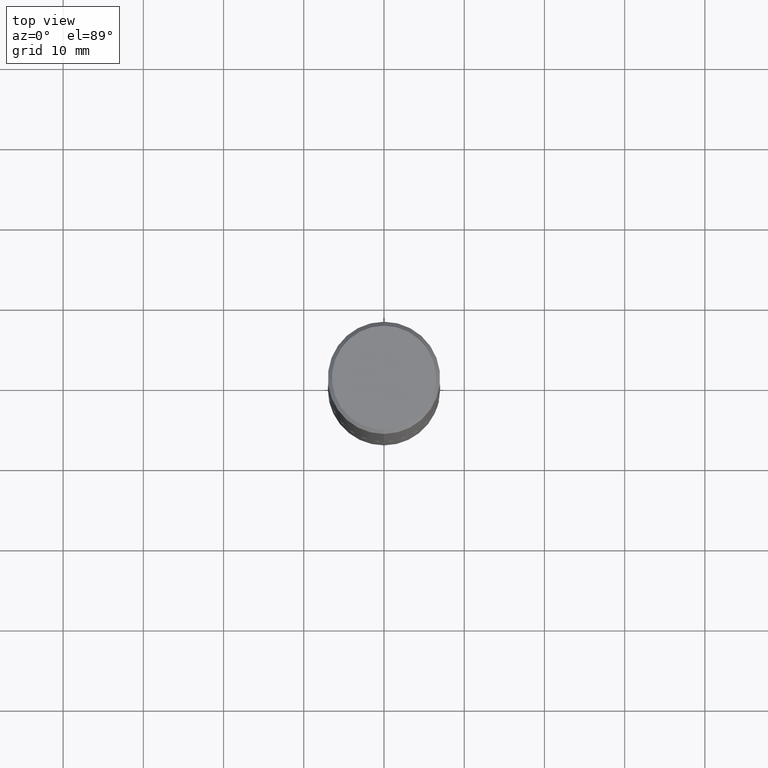
[diagram: clean part render]
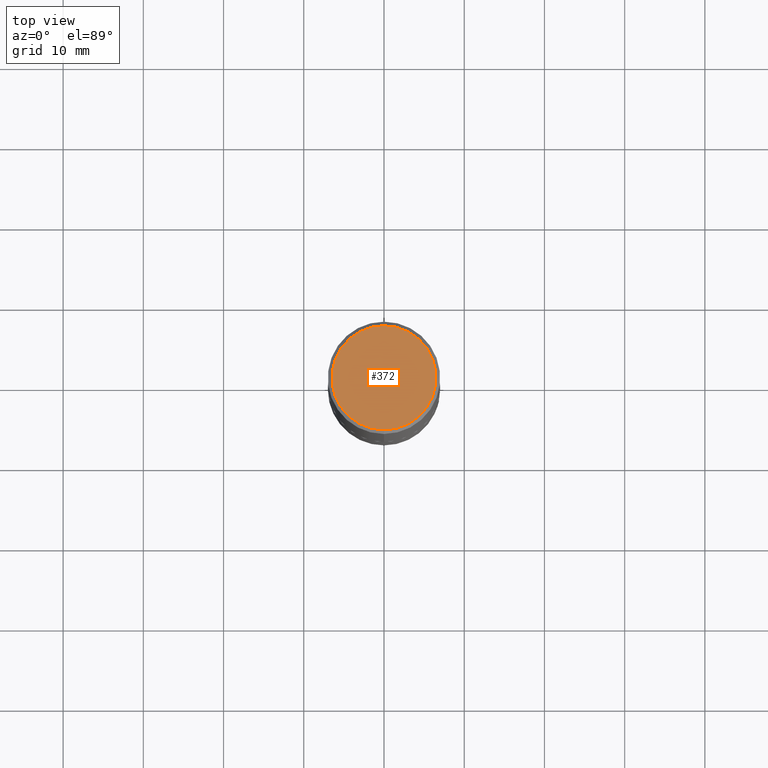
[diagram: same view with one face highlighted and labeled with its STEP entity id]
A machine part, top view. The second image highlights one B-rep face of the part: STEP entity #372.
In plain terms, the highlighted planar face has unit normal (0, -0, -1).
Its self-contained STEP definition (entity closure, byte-faithful):
#5 = CARTESIAN_POINT ( 'NONE',  ( -5.112458463138739389E-45, 7.297132951663266301E-31, 2.090283529609242950E-16 ) ) ;
#32 = ORIENTED_EDGE ( 'NONE', *, *, #205, .T. ) ;
#54 = EDGE_CURVE ( 'NONE', #292, #295, #176, .T. ) ;
#55 = CARTESIAN_POINT ( 'NONE',  ( -1.822148268208117593E-15, -0.2555999999999997718, 1.101322224115235608E-15 ) ) ;
#113 = CARTESIAN_POINT ( 'NONE',  ( 1.784845260416607963E-15, 0.2555999999999997718, -7.877796946738491164E-16 ) ) ;
#118 = AXIS2_PLACEMENT_3D ( 'NONE', #325, #355, #298 ) ;
#131 = AXIS2_PLACEMENT_3D ( 'NONE', #113, #145, #375 ) ;
#137 = DIRECTION ( 'NONE',  ( -2.445820574443535340E-29, 3.490977586675712751E-15, 1.000000000000000000 ) ) ;
#145 = DIRECTION ( 'NONE',  ( 2.445820574443535060E-29, -3.490977586675712751E-15, -1.000000000000000000 ) ) ;
#150 = FACE_OUTER_BOUND ( 'NONE', #344, .T. ) ;
#176 = CIRCLE ( 'NONE', #118, 0.2555999999999997718 ) ;
#205 = EDGE_CURVE ( 'NONE', #295, #292, #314, .T. ) ;
#214 = ORIENTED_EDGE ( 'NONE', *, *, #54, .T. ) ;
#222 = DIRECTION ( 'NONE',  ( -6.982962677686265922E-15, -1.000000000000000000, 3.490977586675711963E-15 ) ) ;
#262 = CARTESIAN_POINT ( 'NONE',  ( 1.854674887193471656E-15, 0.2555999999999997718, -6.832655181933870183E-16 ) ) ;
#279 = PLANE ( 'NONE',  #131 ) ;
#284 = AXIS2_PLACEMENT_3D ( 'NONE', #5, #137, #222 ) ;
#292 = VERTEX_POINT ( 'NONE', #262 ) ;
#295 = VERTEX_POINT ( 'NONE', #55 ) ;
#298 = DIRECTION ( 'NONE',  ( -6.982962677686265922E-15, -1.000000000000000000, 3.490977586675711963E-15 ) ) ;
#314 = CIRCLE ( 'NONE', #284, 0.2555999999999997718 ) ;
#325 = CARTESIAN_POINT ( 'NONE',  ( -5.112458463138739389E-45, 7.297132951663266301E-31, 2.090283529609242950E-16 ) ) ;
#344 = EDGE_LOOP ( 'NONE', ( #214, #32 ) ) ;
#355 = DIRECTION ( 'NONE',  ( -2.445820574443535340E-29, 3.490977586675712751E-15, 1.000000000000000000 ) ) ;
#372 = ADVANCED_FACE ( 'NONE', ( #150 ), #279, .F. ) ;
#375 = DIRECTION ( 'NONE',  ( 6.982962677686265922E-15, 1.000000000000000000, -3.490977586675712751E-15 ) ) ;